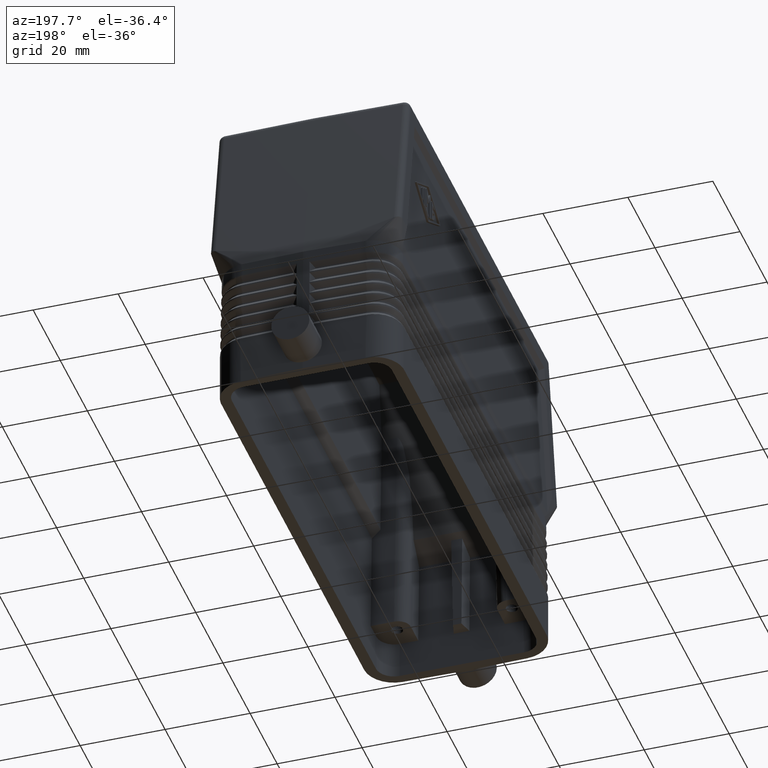
[diagram: clean part render]
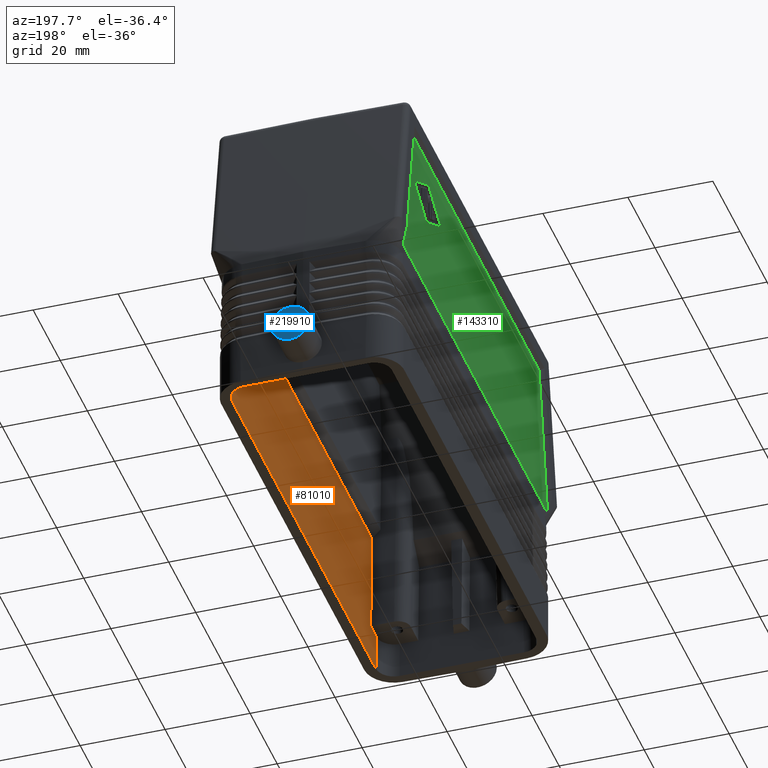
[diagram: same view with three faces highlighted in distinct colors, each labeled with its STEP entity id]
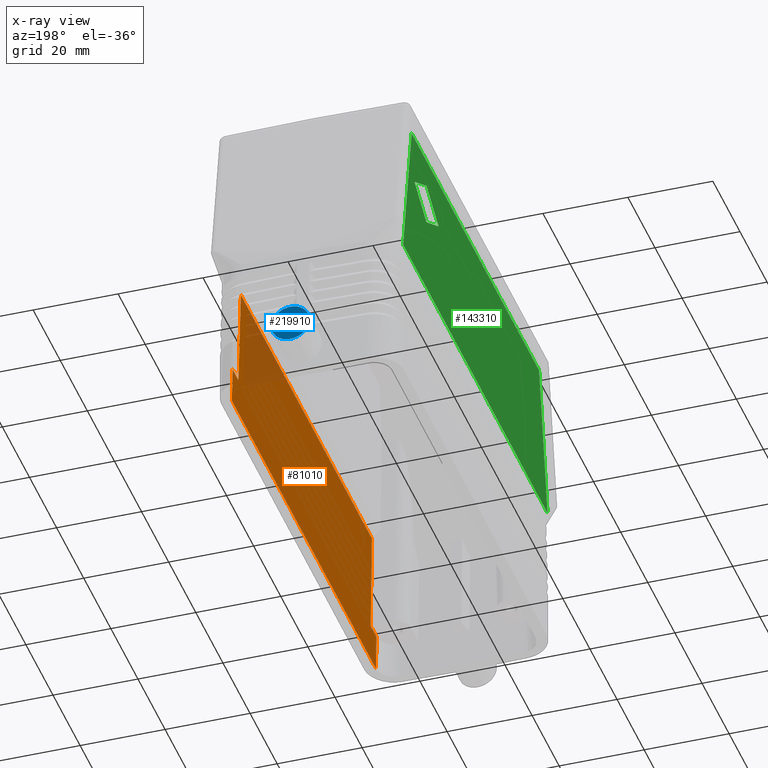
[diagram: x-ray of the same camera — body ghosted, the three highlighted faces saturated]
A machine part, auxiliary view with three faces highlighted in distinct colors.
The next image is the same camera in x-ray (body ghosted, the three faces saturated) — at least one of them is partly hidden behind the body in this view.
Their STEP definitions:

[orange] entity #81010 — the highlighted planar face has unit normal (0.9998, 0, 0.0175).
#80300=CARTESIAN_POINT('',(414.282514349959,-9.08967286768804,
9.2326290096));
#80310=DIRECTION('',(0.999847695156391,-0.,0.0174524064372835));
#80320=DIRECTION('',(0.,1.,0.));
#80330=AXIS2_PLACEMENT_3D('',#80300,#80310,#80320);
#80340=PLANE('',#80330);
#80350=CARTESIAN_POINT('',(414.230149155174,-18.2913696192525,
12.232629009636));
#80360=DIRECTION('',(0.0174497491606827,-0.0174497491606822,
-0.999695459881888));
#80370=VECTOR('',#80360,1.);
#80380=LINE('',#80350,#80370);
#80390=CARTESIAN_POINT('',(413.863580937684,-17.9248014017629,
33.2333081246681));
#80400=VERTEX_POINT('',#80390);
#80410=CARTESIAN_POINT('',(414.282514349959,-18.3437348140378,
9.23262900959999));
#80420=VERTEX_POINT('',#80410);
#80430=EDGE_CURVE('',#80400,#80420,#80380,.T.);
#80440=ORIENTED_EDGE('',*,*,#80430,.F.);
#80450=CARTESIAN_POINT('',(414.282514349959,44.3725639329094,
9.23262900960002));
#80460=DIRECTION('',(-9.3037575484126E-18,1.,5.33011912970449E-16));
#80470=VECTOR('',#80460,1.);
#80480=LINE('',#80450,#80470);
#80490=CARTESIAN_POINT('',(414.282514349959,-22.5984364408212,
9.23262900959999));
#80500=VERTEX_POINT('',#80490);
#80510=EDGE_CURVE('',#80500,#80420,#80480,.T.);
#80520=ORIENTED_EDGE('',*,*,#80510,.T.);
#80530=CARTESIAN_POINT('',(414.438330476186,-22.7542525670476,
0.305929116636577));
#80540=DIRECTION('',(-0.0174497491606827,0.0174497491606821,
0.999695459881887));
#80550=VECTOR('',#80540,1.);
#80560=LINE('',#80530,#80550);
#80570=CARTESIAN_POINT('',(414.435530213605,-22.7514523044671,
0.466356052426514));
#80580=VERTEX_POINT('',#80570);
#80590=EDGE_CURVE('',#80580,#80500,#80560,.T.);
#80600=ORIENTED_EDGE('',*,*,#80590,.T.);
#80610=CARTESIAN_POINT('',(414.435530213605,44.3725639329094,
0.466356052426514));
#80620=DIRECTION('',(0.,-1.,0.));
#80630=VECTOR('',#80620,1.);
#80640=LINE('',#80610,#80630);
#80650=CARTESIAN_POINT('',(414.435530213605,83.5639826763011,
0.466356052426534));
#80660=VERTEX_POINT('',#80650);
#80670=EDGE_CURVE('',#80660,#80580,#80640,.T.);
#80680=ORIENTED_EDGE('',*,*,#80670,.T.);
#80690=CARTESIAN_POINT('',(414.438330476186,83.5667829388815,
0.305929116636603));
#80700=DIRECTION('',(-0.0174497491606827,-0.0174497491606827,
0.999695459881887));
#80710=VECTOR('',#80700,1.);
#80720=LINE('',#80690,#80710);
#80730=CARTESIAN_POINT('',(414.282514349959,83.4109668126551,
9.23262900960001));
#80740=VERTEX_POINT('',#80730);
#80750=EDGE_CURVE('',#80660,#80740,#80720,.T.);
#80760=ORIENTED_EDGE('',*,*,#80750,.F.);
#80770=CARTESIAN_POINT('',(414.282514349959,16.4399664389246,
9.23262900960001));
#80780=DIRECTION('',(-9.3037575484126E-18,-1.,0.));
#80790=VECTOR('',#80780,1.);
#80800=LINE('',#80770,#80790);
#80810=CARTESIAN_POINT('',(414.282514349959,79.1562651858717,
9.23262900960001));
#80820=VERTEX_POINT('',#80810);
#80830=EDGE_CURVE('',#80740,#80820,#80800,.T.);
#80840=ORIENTED_EDGE('',*,*,#80830,.F.);
#80850=CARTESIAN_POINT('',(414.230149155174,79.1038999910865,
12.232629009636));
#80860=DIRECTION('',(0.0174497491606827,0.0174497491606827,
-0.999695459881888));
#80870=VECTOR('',#80860,1.);
#80880=LINE('',#80850,#80870);
#80890=CARTESIAN_POINT('',(413.863580937684,78.7373317735969,
33.2333081246681));
#80900=VERTEX_POINT('',#80890);
#80910=EDGE_CURVE('',#80900,#80820,#80880,.T.);
#80920=ORIENTED_EDGE('',*,*,#80910,.T.);
#80930=CARTESIAN_POINT('',(413.863580937684,44.3725639329094,
33.2333081246681));
#80940=DIRECTION('',(0.,1.,0.));
#80950=VECTOR('',#80940,1.);
#80960=LINE('',#80930,#80950);
#80970=EDGE_CURVE('',#80400,#80900,#80960,.T.);
#80980=ORIENTED_EDGE('',*,*,#80970,.T.);
#80990=EDGE_LOOP('',(#80980,#80920,#80840,#80760,#80680,#80600,#80520,
#80440));
#81000=FACE_OUTER_BOUND('',#80990,.T.);
#81010=ADVANCED_FACE('',(#81000),#80340,.F.);

[blue] entity #219910 — the highlighted planar face has unit normal (-0, 1, 0).
#219500=CARTESIAN_POINT('',(391.08251434996,99.5081795975531,
6.73262900963605));
#219510=VERTEX_POINT('',#219500);
#219540=CARTESIAN_POINT('',(395.58251434996,99.5081795975531,
6.73262900963605));
#219550=DIRECTION('',(-4.65187877420631E-18,1.,2.65685704746347E-16));
#219560=DIRECTION('',(-1.,-4.65187877420631E-18,0.));
#219570=AXIS2_PLACEMENT_3D('',#219540,#219550,#219560);
#219580=CIRCLE('',#219570,4.5);
#219590=CARTESIAN_POINT('',(400.08251434996,99.5081795975531,
6.73262900963605));
#219600=VERTEX_POINT('',#219590);
#219610=EDGE_CURVE('',#219510,#219600,#219580,.T.);
#219810=CARTESIAN_POINT('',(395.58251434996,99.5081795975531,
0.465258019272085));
#219820=DIRECTION('',(-4.65187877420631E-18,1.,2.65685704746347E-16));
#219830=DIRECTION('',(-1.,-4.65187877420631E-18,0.));
#219840=AXIS2_PLACEMENT_3D('',#219810,#219820,#219830);
#219850=PLANE('',#219840);
#219860=ORIENTED_EDGE('',*,*,#219610,.T.);
#219870=EDGE_CURVE('',#219600,#219510,#219580,.T.);
#219880=ORIENTED_EDGE('',*,*,#219870,.T.);
#219890=EDGE_LOOP('',(#219880,#219860));
#219900=FACE_OUTER_BOUND('',#219890,.T.);
#219910=ADVANCED_FACE('',(#219900),#219850,.T.);

[green] entity #143310 — the highlighted planar face has unit normal (1, 0, 0).
#141950=CARTESIAN_POINT('',(374.082514349959,-22.8431715630312,
34.8698003315914));
#141960=VERTEX_POINT('',#141950);
#141990=CARTESIAN_POINT('',(374.082514349959,-26.8313672772595,
12.232629009636));
#142000=DIRECTION('',(0.,0.17350689775451,0.984832654023822));
#142010=VECTOR('',#142000,1.);
#142020=LINE('',#141990,#142010);
#142030=CARTESIAN_POINT('',(374.082514349959,-16.6129814137838,
70.2326290096627));
#142040=VERTEX_POINT('',#142030);
#142050=EDGE_CURVE('',#141960,#142040,#142020,.T.);
#142310=CARTESIAN_POINT('',(374.082514349959,-12.3166975054993,
48.8932465170462));
#142320=DIRECTION('',(1.,0.,0.));
#142330=DIRECTION('',(0.,1.,0.));
#142340=AXIS2_PLACEMENT_3D('',#142310,#142320,#142330);
#142350=PLANE('',#142340);
#142360=CARTESIAN_POINT('',(374.082514349959,57.907115185917,
58.232629009636));
#142370=DIRECTION('',(-1.,2.43180401543564E-15,6.48090255118284E-31));
#142380=DIRECTION('',(-2.43180401543564E-15,-1.,1.33441342967321E-45));
#142390=AXIS2_PLACEMENT_3D('',#142360,#142370,#142380);
#142400=CIRCLE('',#142390,0.166649999999925);
#142410=CARTESIAN_POINT('',(374.082514349959,57.8244144252056,
58.0879472669117));
#142420=VERTEX_POINT('',#142410);
#142430=CARTESIAN_POINT('',(374.082514349959,57.8244144252057,
58.3773107523603));
#142440=VERTEX_POINT('',#142430);
#142450=EDGE_CURVE('',#142420,#142440,#142400,.T.);
#142460=ORIENTED_EDGE('',*,*,#142450,.F.);
#142470=CARTESIAN_POINT('',(374.082514349959,70.8725639329094,
65.8356940275687));
#142480=DIRECTION('',(0.,-0.868177274073497,-0.496254189687414));
#142490=VECTOR('',#142480,1.);
#142500=LINE('',#142470,#142490);
#142510=CARTESIAN_POINT('',(374.082514349959,66.2408636644942,
63.1881924950847));
#142520=VERTEX_POINT('',#142510);
#142530=EDGE_CURVE('',#142520,#142440,#142500,.T.);
#142540=ORIENTED_EDGE('',*,*,#142530,.T.);
#142550=CARTESIAN_POINT('',(374.082514349959,66.406265185917,
62.898829009636));
#142560=DIRECTION('',(-1.,2.43180401543564E-15,6.48090255118284E-31));
#142570=DIRECTION('',(-2.43180401543564E-15,-1.,1.33441342967321E-45));
#142580=AXIS2_PLACEMENT_3D('',#142550,#142560,#142570);
#142590=CIRCLE('',#142580,0.333299999999976);
#142600=CARTESIAN_POINT('',(374.082514349959,66.5716639238781,
63.1881940861068));
#142610=VERTEX_POINT('',#142600);
#142620=EDGE_CURVE('',#142520,#142610,#142590,.T.);
#142630=ORIENTED_EDGE('',*,*,#142620,.F.);
#142640=CARTESIAN_POINT('',(374.082514349959,70.8725639329094,
60.7298344171833));
#142650=DIRECTION('',(0.,-0.868182047616831,0.496245838467031));
#142660=VECTOR('',#142650,1.);
#142670=LINE('',#142640,#142660);
#142680=CARTESIAN_POINT('',(374.082514349959,74.9880213023149,
58.377472261617));
#142690=VERTEX_POINT('',#142680);
#142700=EDGE_CURVE('',#142690,#142610,#142670,.T.);
#142710=ORIENTED_EDGE('',*,*,#142700,.T.);
#142720=CARTESIAN_POINT('',(374.082514349959,74.9052300706569,
58.232629009636));
#142730=DIRECTION('',(-1.,2.43180401543564E-15,6.48090255118284E-31));
#142740=DIRECTION('',(-2.43180401543564E-15,-1.,1.33441342967321E-45));
#142750=AXIS2_PLACEMENT_3D('',#142720,#142730,#142740);
#142760=CIRCLE('',#142750,0.166835115260118);
#142770=CARTESIAN_POINT('',(374.082514349959,74.9880213023149,
58.0877857576551));
#142780=VERTEX_POINT('',#142770);
#142790=EDGE_CURVE('',#142690,#142780,#142760,.T.);
#142800=ORIENTED_EDGE('',*,*,#142790,.F.);
#142810=CARTESIAN_POINT('',(374.082514349959,70.8725639329094,
55.7354236020888));
#142820=DIRECTION('',(0.,0.868182047616831,0.496245838467031));
#142830=VECTOR('',#142820,1.);
#142840=LINE('',#142810,#142830);
#142850=CARTESIAN_POINT('',(374.082514349959,66.5716639238781,
53.2770639331653));
#142860=VERTEX_POINT('',#142850);
#142870=EDGE_CURVE('',#142860,#142780,#142840,.T.);
#142880=ORIENTED_EDGE('',*,*,#142870,.T.);
#142890=CARTESIAN_POINT('',(374.082514349959,66.406265185917,
53.566429009636));
#142900=DIRECTION('',(-1.,2.43180401543564E-15,6.48090255118284E-31));
#142910=DIRECTION('',(-2.43180401543564E-15,-1.,1.33441342967321E-45));
#142920=AXIS2_PLACEMENT_3D('',#142890,#142900,#142910);
#142930=CIRCLE('',#142920,0.333300000000038);
#142940=CARTESIAN_POINT('',(374.082514349959,66.2408636644942,
53.2770655241873));
#142950=VERTEX_POINT('',#142940);
#142960=EDGE_CURVE('',#142860,#142950,#142930,.T.);
#142970=ORIENTED_EDGE('',*,*,#142960,.F.);
#142980=CARTESIAN_POINT('',(374.082514349959,70.8725639329094,
50.6295639917033));
#142990=DIRECTION('',(0.,0.868177274073496,-0.496254189687417));
#143000=VECTOR('',#142990,1.);
#143010=LINE('',#142980,#143000);
#143020=EDGE_CURVE('',#142420,#142950,#143010,.T.);
#143030=ORIENTED_EDGE('',*,*,#143020,.T.);
#143040=EDGE_LOOP('',(#143030,#142970,#142880,#142800,#142710,#142630,
#142540,#142460));
#143050=FACE_BOUND('',#143040,.T.);
#143060=CARTESIAN_POINT('',(374.082514349959,44.3725639329094,
34.8698003315914));
#143070=DIRECTION('',(0.,1.,0.));
#143080=VECTOR('',#143070,1.);
#143090=LINE('',#143060,#143080);
#143100=CARTESIAN_POINT('',(374.082514349959,83.6557019348652,
34.8698003315914));
#143110=VERTEX_POINT('',#143100);
#143120=EDGE_CURVE('',#141960,#143110,#143090,.T.);
#143130=ORIENTED_EDGE('',*,*,#143120,.F.);
#143140=CARTESIAN_POINT('',(374.082514349959,87.6438976490934,
12.232629009636));
#143150=DIRECTION('',(0.,-0.173506897754511,0.984832654023822));
#143160=VECTOR('',#143150,1.);
#143170=LINE('',#143140,#143160);
#143180=CARTESIAN_POINT('',(374.082514349959,77.4255117856178,
70.2326290096627));
#143190=VERTEX_POINT('',#143180);
#143200=EDGE_CURVE('',#143110,#143190,#143170,.T.);
#143210=ORIENTED_EDGE('',*,*,#143200,.F.);
#143220=CARTESIAN_POINT('',(374.082514349959,44.3725639329094,
70.2326290096627));
#143230=DIRECTION('',(0.,1.,2.7890444774737E-31));
#143240=VECTOR('',#143230,1.);
#143250=LINE('',#143220,#143240);
#143260=EDGE_CURVE('',#142040,#143190,#143250,.T.);
#143270=ORIENTED_EDGE('',*,*,#143260,.T.);
#143280=ORIENTED_EDGE('',*,*,#142050,.T.);
#143290=EDGE_LOOP('',(#143280,#143270,#143210,#143130));
#143300=FACE_OUTER_BOUND('',#143290,.T.);
#143310=ADVANCED_FACE('',(#143050,#143300),#142350,.F.);